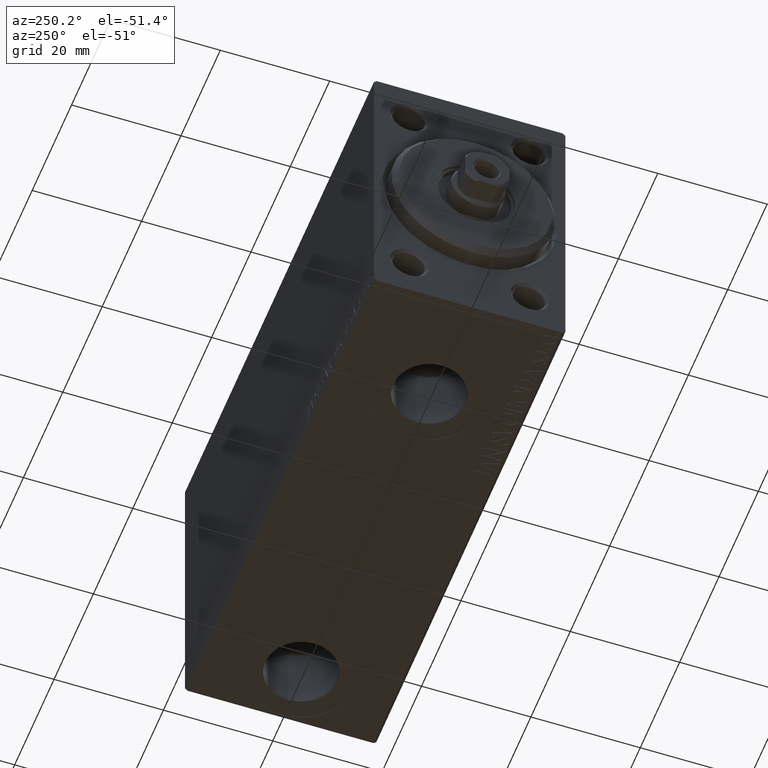
[diagram: clean part render]
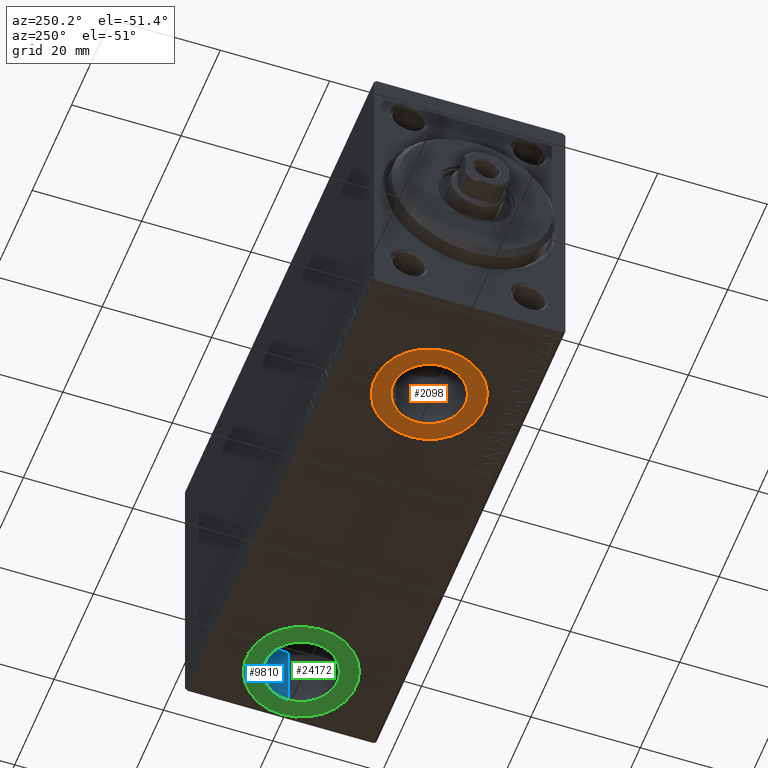
[diagram: same view with three faces highlighted in distinct colors, each labeled with its STEP entity id]
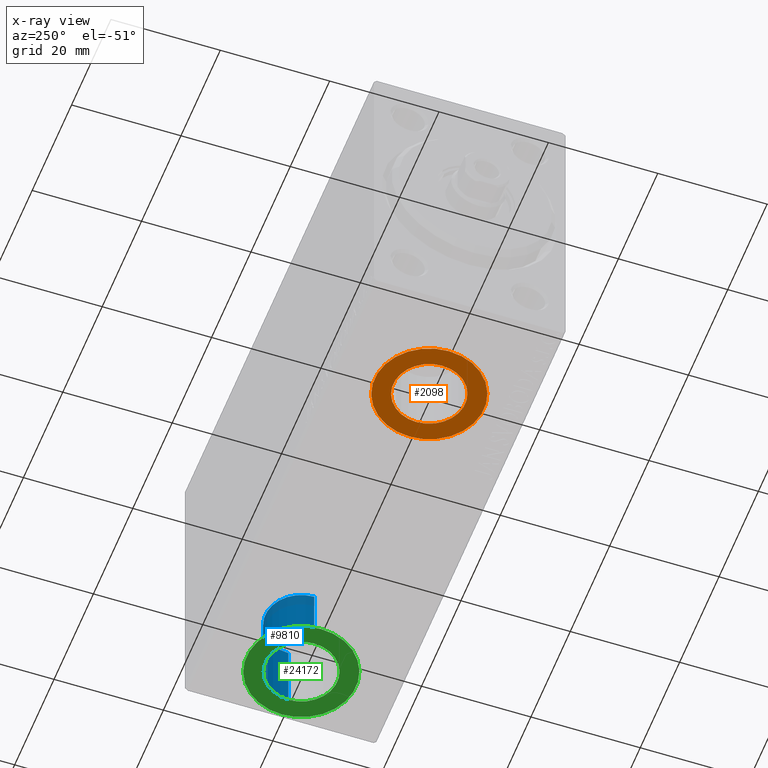
[diagram: x-ray of the same camera — body ghosted, the three highlighted faces saturated]
A machine part, auxiliary view with three faces highlighted in distinct colors.
The next image is the same camera in x-ray (body ghosted, the three faces saturated) — at least one of them is partly hidden behind the body in this view.
Their STEP definitions:

[orange] entity #2098 — the highlighted planar face has unit normal (0, 0, -1).
#409 = ORIENTED_EDGE ( 'NONE', *, *, #26296, .T. ) ;
#1224 = CIRCLE ( 'NONE', #45360, 10.00000000000000000 ) ;
#1877 = AXIS2_PLACEMENT_3D ( 'NONE', #16606, #33905, #33457 ) ;
#2094 = CARTESIAN_POINT ( 'NONE',  ( 0.000000000000000000, 0.000000000000000000, -27.40000000000000924 ) ) ;
#2098 = ADVANCED_FACE ( 'NONE', ( #30901, #30667 ), #13595, .T. ) ;
#5666 = VERTEX_POINT ( 'NONE', #29926 ) ;
#7817 = ORIENTED_EDGE ( 'NONE', *, *, #15523, .F. ) ;
#8569 = CARTESIAN_POINT ( 'NONE',  ( 30.50000000000000711, -4.228333445939403167E-15, -27.40000000000000924 ) ) ;
#9305 = DIRECTION ( 'NONE',  ( 0.000000000000000000, 0.000000000000000000, -1.000000000000000000 ) ) ;
#10085 = EDGE_CURVE ( 'NONE', #5666, #30087, #12845, .T. ) ;
#12845 = CIRCLE ( 'NONE', #43752, 6.580000000000002736 ) ;
#13332 = VERTEX_POINT ( 'NONE', #8569 ) ;
#13595 = PLANE ( 'NONE',  #39162 ) ;
#15523 = EDGE_CURVE ( 'NONE', #30087, #5666, #36438, .T. ) ;
#16606 = CARTESIAN_POINT ( 'NONE',  ( 20.50000000000000355, -2.726986211408916281E-15, -27.40000000000000924 ) ) ;
#18081 = CARTESIAN_POINT ( 'NONE',  ( 20.50000000000000355, -5.452980245086756226E-15, -27.40000000000000924 ) ) ;
#18328 = AXIS2_PLACEMENT_3D ( 'NONE', #18081, #25247, #25019 ) ;
#18525 = EDGE_CURVE ( 'NONE', #13332, #33383, #1224, .T. ) ;
#19891 = ORIENTED_EDGE ( 'NONE', *, *, #18525, .T. ) ;
#22058 = CARTESIAN_POINT ( 'NONE',  ( 10.50000000000000355, -5.452980245086756226E-15, -27.40000000000000924 ) ) ;
#23750 = DIRECTION ( 'NONE',  ( -1.000000000000000000, 0.000000000000000000, -0.000000000000000000 ) ) ;
#24276 = CARTESIAN_POINT ( 'NONE',  ( 20.50000000000000355, -5.452980245086756226E-15, -27.40000000000000924 ) ) ;
#25019 = DIRECTION ( 'NONE',  ( -1.000000000000000000, 0.000000000000000000, 0.000000000000000000 ) ) ;
#25247 = DIRECTION ( 'NONE',  ( 0.000000000000000000, 0.000000000000000000, -1.000000000000000000 ) ) ;
#26296 = EDGE_CURVE ( 'NONE', #33383, #13332, #38213, .T. ) ;
#29926 = CARTESIAN_POINT ( 'NONE',  ( 13.92000000000000171, -2.726986211408916281E-15, -27.40000000000000924 ) ) ;
#30087 = VERTEX_POINT ( 'NONE', #37417 ) ;
#30667 = FACE_OUTER_BOUND ( 'NONE', #36924, .T. ) ;
#30901 = FACE_BOUND ( 'NONE', #32346, .T. ) ;
#32346 = EDGE_LOOP ( 'NONE', ( #41769, #7817 ) ) ;
#32958 = DIRECTION ( 'NONE',  ( -1.000000000000000000, 0.000000000000000000, 0.000000000000000000 ) ) ;
#33383 = VERTEX_POINT ( 'NONE', #22058 ) ;
#33457 = DIRECTION ( 'NONE',  ( -1.000000000000000000, 0.000000000000000000, 0.000000000000000000 ) ) ;
#33905 = DIRECTION ( 'NONE',  ( 0.000000000000000000, 0.000000000000000000, -1.000000000000000000 ) ) ;
#36438 = CIRCLE ( 'NONE', #1877, 6.580000000000002736 ) ;
#36924 = EDGE_LOOP ( 'NONE', ( #409, #19891 ) ) ;
#37307 = DIRECTION ( 'NONE',  ( 0.000000000000000000, 0.000000000000000000, -1.000000000000000000 ) ) ;
#37417 = CARTESIAN_POINT ( 'NONE',  ( 27.08000000000000540, -1.921168617569958028E-15, -27.40000000000000924 ) ) ;
#37795 = DIRECTION ( 'NONE',  ( 0.000000000000000000, 0.000000000000000000, -1.000000000000000000 ) ) ;
#38213 = CIRCLE ( 'NONE', #18328, 10.00000000000000000 ) ;
#38316 = DIRECTION ( 'NONE',  ( -1.000000000000000000, 0.000000000000000000, 0.000000000000000000 ) ) ;
#39162 = AXIS2_PLACEMENT_3D ( 'NONE', #2094, #37795, #23750 ) ;
#40746 = CARTESIAN_POINT ( 'NONE',  ( 20.50000000000000355, -2.726986211408916281E-15, -27.40000000000000924 ) ) ;
#41769 = ORIENTED_EDGE ( 'NONE', *, *, #10085, .F. ) ;
#43752 = AXIS2_PLACEMENT_3D ( 'NONE', #40746, #37307, #32958 ) ;
#45360 = AXIS2_PLACEMENT_3D ( 'NONE', #24276, #9305, #38316 ) ;

[blue] entity #9810 — the highlighted cylindrical surface (partial cylindrical patch) has radius 6.58 mm, axis along (-0, -0, -1).
#2769 = LINE ( 'NONE', #16803, #14327 ) ;
#3280 = CYLINDRICAL_SURFACE ( 'NONE', #34968, 6.580000000000002736 ) ;
#6279 = CARTESIAN_POINT ( 'NONE',  ( 85.50000000000001421, -1.313433488953868251E-14, -14.50000000000000711 ) ) ;
#9810 = ADVANCED_FACE ( 'NONE', ( #34836 ), #3280, .F. ) ;
#10405 = DIRECTION ( 'NONE',  ( -1.000000000000000000, 0.000000000000000000, 0.000000000000000000 ) ) ;
#10966 = EDGE_CURVE ( 'NONE', #11181, #15167, #2769, .T. ) ;
#11181 = VERTEX_POINT ( 'NONE', #27831 ) ;
#11396 = CARTESIAN_POINT ( 'NONE',  ( 92.08000000000002672, -1.232851729569972347E-14, -14.50000000000000711 ) ) ;
#12351 = VERTEX_POINT ( 'NONE', #13593 ) ;
#13483 = DIRECTION ( 'NONE',  ( 0.000000000000000000, 0.000000000000000000, -1.000000000000000000 ) ) ;
#13593 = CARTESIAN_POINT ( 'NONE',  ( 92.08000000000002672, -1.232851729569972347E-14, -27.40000000000000924 ) ) ;
#13741 = VERTEX_POINT ( 'NONE', #11396 ) ;
#14327 = VECTOR ( 'NONE', #44903, 1000.000000000000000 ) ;
#15167 = VERTEX_POINT ( 'NONE', #31880 ) ;
#16803 = CARTESIAN_POINT ( 'NONE',  ( 78.92000000000001592, -1.313433488953868251E-14, -14.50000000000000711 ) ) ;
#17161 = DIRECTION ( 'NONE',  ( -1.000000000000000000, 0.000000000000000000, 0.000000000000000000 ) ) ;
#17985 = CARTESIAN_POINT ( 'NONE',  ( 85.50000000000001421, -1.313433488953868251E-14, -14.50000000000000711 ) ) ;
#18546 = LINE ( 'NONE', #28947, #30027 ) ;
#20392 = ORIENTED_EDGE ( 'NONE', *, *, #22044, .F. ) ;
#22044 = EDGE_CURVE ( 'NONE', #13741, #12351, #18546, .T. ) ;
#22884 = CIRCLE ( 'NONE', #43483, 6.580000000000002736 ) ;
#26485 = ORIENTED_EDGE ( 'NONE', *, *, #10966, .T. ) ;
#27831 = CARTESIAN_POINT ( 'NONE',  ( 78.92000000000001592, -1.313433488953868251E-14, -14.50000000000000711 ) ) ;
#27837 = EDGE_LOOP ( 'NONE', ( #20392, #28198, #26485, #38646 ) ) ;
#28198 = ORIENTED_EDGE ( 'NONE', *, *, #39507, .F. ) ;
#28947 = CARTESIAN_POINT ( 'NONE',  ( 92.08000000000002672, -1.232851729569972347E-14, -14.50000000000000711 ) ) ;
#29279 = DIRECTION ( 'NONE',  ( 0.000000000000000000, 0.000000000000000000, -1.000000000000000000 ) ) ;
#30027 = VECTOR ( 'NONE', #40180, 1000.000000000000000 ) ;
#31019 = CARTESIAN_POINT ( 'NONE',  ( 85.50000000000001421, -1.313433488953868251E-14, -27.40000000000000924 ) ) ;
#31880 = CARTESIAN_POINT ( 'NONE',  ( 78.92000000000001592, -1.313433488953868251E-14, -27.40000000000000924 ) ) ;
#32061 = DIRECTION ( 'NONE',  ( -1.000000000000000000, 0.000000000000000000, 0.000000000000000000 ) ) ;
#34669 = CIRCLE ( 'NONE', #39058, 6.580000000000002736 ) ;
#34836 = FACE_OUTER_BOUND ( 'NONE', #27837, .T. ) ;
#34968 = AXIS2_PLACEMENT_3D ( 'NONE', #6279, #44718, #10405 ) ;
#38646 = ORIENTED_EDGE ( 'NONE', *, *, #44813, .T. ) ;
#39058 = AXIS2_PLACEMENT_3D ( 'NONE', #17985, #29279, #32061 ) ;
#39507 = EDGE_CURVE ( 'NONE', #11181, #13741, #34669, .T. ) ;
#40180 = DIRECTION ( 'NONE',  ( -0.000000000000000000, -0.000000000000000000, -1.000000000000000000 ) ) ;
#43483 = AXIS2_PLACEMENT_3D ( 'NONE', #31019, #13483, #17161 ) ;
#44718 = DIRECTION ( 'NONE',  ( -0.000000000000000000, -0.000000000000000000, -1.000000000000000000 ) ) ;
#44813 = EDGE_CURVE ( 'NONE', #15167, #12351, #22884, .T. ) ;
#44903 = DIRECTION ( 'NONE',  ( -0.000000000000000000, -0.000000000000000000, -1.000000000000000000 ) ) ;

[green] entity #24172 — the highlighted planar face has unit normal (0, 0, -1).
#1347 = FACE_OUTER_BOUND ( 'NONE', #19095, .T. ) ;
#2114 = VERTEX_POINT ( 'NONE', #16816 ) ;
#2118 = EDGE_CURVE ( 'NONE', #12351, #15167, #22971, .T. ) ;
#3879 = ORIENTED_EDGE ( 'NONE', *, *, #44813, .F. ) ;
#4348 = FACE_BOUND ( 'NONE', #26641, .T. ) ;
#6067 = DIRECTION ( 'NONE',  ( 0.000000000000000000, 0.000000000000000000, -1.000000000000000000 ) ) ;
#8157 = ORIENTED_EDGE ( 'NONE', *, *, #31220, .T. ) ;
#9462 = DIRECTION ( 'NONE',  ( 0.000000000000000000, 0.000000000000000000, -1.000000000000000000 ) ) ;
#10019 = DIRECTION ( 'NONE',  ( -1.000000000000000000, 0.000000000000000000, 0.000000000000000000 ) ) ;
#11929 = DIRECTION ( 'NONE',  ( 0.000000000000000000, 0.000000000000000000, -1.000000000000000000 ) ) ;
#12351 = VERTEX_POINT ( 'NONE', #13593 ) ;
#12498 = DIRECTION ( 'NONE',  ( -1.000000000000000000, 0.000000000000000000, 0.000000000000000000 ) ) ;
#13368 = CARTESIAN_POINT ( 'NONE',  ( 85.50000000000001421, -1.313433488953868251E-14, -27.40000000000000924 ) ) ;
#13483 = DIRECTION ( 'NONE',  ( 0.000000000000000000, 0.000000000000000000, -1.000000000000000000 ) ) ;
#13593 = CARTESIAN_POINT ( 'NONE',  ( 92.08000000000002672, -1.232851729569972347E-14, -27.40000000000000924 ) ) ;
#14341 = ORIENTED_EDGE ( 'NONE', *, *, #2118, .F. ) ;
#15167 = VERTEX_POINT ( 'NONE', #31880 ) ;
#16816 = CARTESIAN_POINT ( 'NONE',  ( 95.50000000000001421, -1.190968809039132945E-14, -27.40000000000000924 ) ) ;
#17161 = DIRECTION ( 'NONE',  ( -1.000000000000000000, 0.000000000000000000, 0.000000000000000000 ) ) ;
#17929 = DIRECTION ( 'NONE',  ( -1.000000000000000000, 0.000000000000000000, -0.000000000000000000 ) ) ;
#19095 = EDGE_LOOP ( 'NONE', ( #8157, #28176 ) ) ;
#19677 = CIRCLE ( 'NONE', #45431, 9.999999999999994671 ) ;
#20663 = CARTESIAN_POINT ( 'NONE',  ( 75.50000000000002842, -1.313433488953868251E-14, -27.40000000000000924 ) ) ;
#22546 = VERTEX_POINT ( 'NONE', #20663 ) ;
#22884 = CIRCLE ( 'NONE', #43483, 6.580000000000002736 ) ;
#22971 = CIRCLE ( 'NONE', #23731, 6.580000000000002736 ) ;
#23731 = AXIS2_PLACEMENT_3D ( 'NONE', #13368, #9462, #41229 ) ;
#24172 = ADVANCED_FACE ( 'NONE', ( #4348, #1347 ), #29460, .T. ) ;
#24207 = AXIS2_PLACEMENT_3D ( 'NONE', #36358, #11929, #17929 ) ;
#26641 = EDGE_LOOP ( 'NONE', ( #3879, #14341 ) ) ;
#27545 = CARTESIAN_POINT ( 'NONE',  ( 85.50000000000001421, -1.313433488953868251E-14, -27.40000000000000924 ) ) ;
#28176 = ORIENTED_EDGE ( 'NONE', *, *, #40248, .T. ) ;
#29460 = PLANE ( 'NONE',  #24207 ) ;
#31019 = CARTESIAN_POINT ( 'NONE',  ( 85.50000000000001421, -1.313433488953868251E-14, -27.40000000000000924 ) ) ;
#31220 = EDGE_CURVE ( 'NONE', #22546, #2114, #19677, .T. ) ;
#31880 = CARTESIAN_POINT ( 'NONE',  ( 78.92000000000001592, -1.313433488953868251E-14, -27.40000000000000924 ) ) ;
#36358 = CARTESIAN_POINT ( 'NONE',  ( 85.50000000000001421, -1.313433488953868251E-14, -27.40000000000000924 ) ) ;
#38308 = CIRCLE ( 'NONE', #44168, 9.999999999999994671 ) ;
#40248 = EDGE_CURVE ( 'NONE', #2114, #22546, #38308, .T. ) ;
#41229 = DIRECTION ( 'NONE',  ( -1.000000000000000000, 0.000000000000000000, 0.000000000000000000 ) ) ;
#41550 = DIRECTION ( 'NONE',  ( 0.000000000000000000, 0.000000000000000000, -1.000000000000000000 ) ) ;
#43483 = AXIS2_PLACEMENT_3D ( 'NONE', #31019, #13483, #17161 ) ;
#44046 = CARTESIAN_POINT ( 'NONE',  ( 85.50000000000001421, -1.313433488953868251E-14, -27.40000000000000924 ) ) ;
#44168 = AXIS2_PLACEMENT_3D ( 'NONE', #27545, #41550, #10019 ) ;
#44813 = EDGE_CURVE ( 'NONE', #15167, #12351, #22884, .T. ) ;
#45431 = AXIS2_PLACEMENT_3D ( 'NONE', #44046, #6067, #12498 ) ;